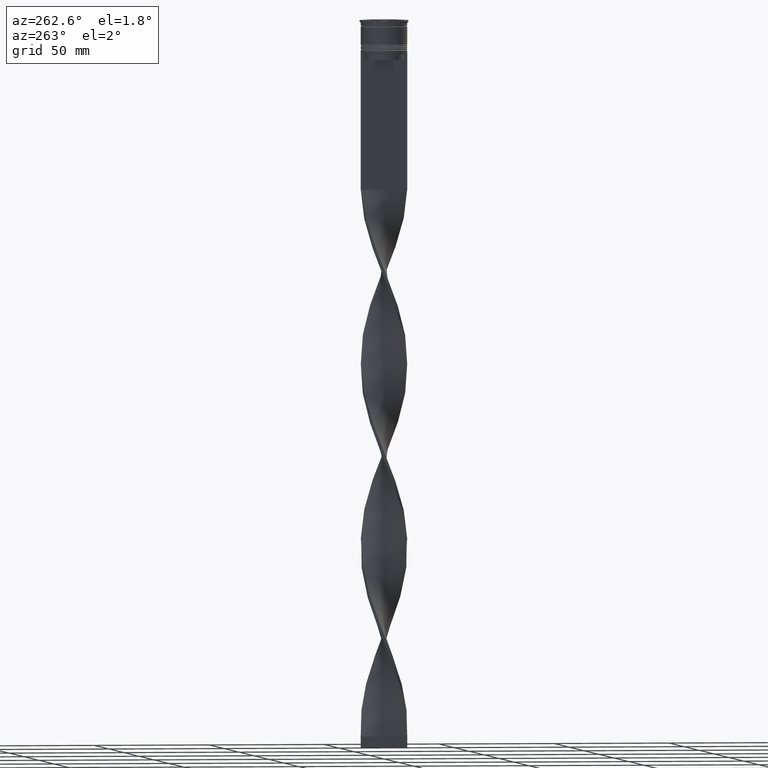
[diagram: clean part render]
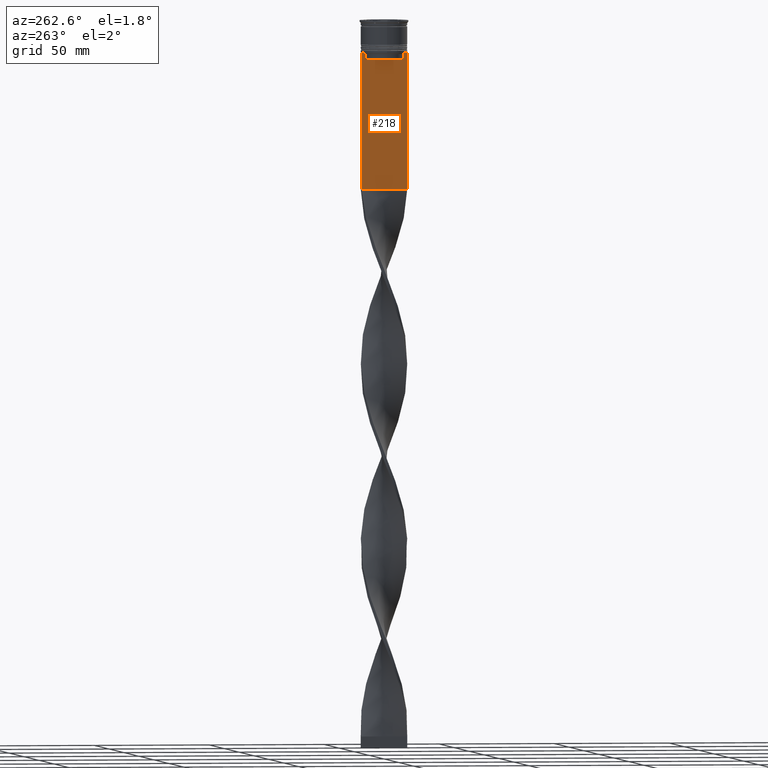
[diagram: same view with one face highlighted and labeled with its STEP entity id]
A machine part, auxiliary view. The second image highlights one B-rep face of the part: STEP entity #218.
In plain terms, the highlighted planar face has unit normal (-1, 0, 0).
Its self-contained STEP definition (entity closure, byte-faithful):
#84 = AXIS2_PLACEMENT_3D ( 'NONE', #3592, #623, #322 ) ;
#86 = VERTEX_POINT ( 'NONE', #1537 ) ;
#115 = LINE ( 'NONE', #1435, #3441 ) ;
#172 = CARTESIAN_POINT ( 'NONE',  ( -0.7499999999999997780, 9.999999999999998224, -73.00000000000001421 ) ) ;
#173 = LINE ( 'NONE', #1494, #1977 ) ;
#209 = B_SPLINE_CURVE_WITH_KNOTS ( 'NONE', 3,
 ( #2712, #3514, #1195, #1885 ),
 .UNSPECIFIED., .F., .F.,
 ( 4, 4 ),
 ( 0.03866293624047253963, 0.03937282246709321309 ),
 .UNSPECIFIED. ) ;
#217 = DIRECTION ( 'NONE',  ( -0.000000000000000000, -0.000000000000000000, 1.000000000000000000 ) ) ;
#218 = ADVANCED_FACE ( 'NONE', ( #4242 ), #1267, .T. ) ;
#223 = ORIENTED_EDGE ( 'NONE', *, *, #250, .F. ) ;
#237 = VERTEX_POINT ( 'NONE', #1644 ) ;
#250 = EDGE_CURVE ( 'NONE', #86, #2682, #1882, .T. ) ;
#288 = CARTESIAN_POINT ( 'NONE',  ( -0.7499999999999997780, 8.366450860430608927, -14.50000000000000000 ) ) ;
#322 = DIRECTION ( 'NONE',  ( 0.000000000000000000, 0.000000000000000000, 1.000000000000000000 ) ) ;
#349 = CARTESIAN_POINT ( 'NONE',  ( -0.7499999999999997780, 8.868342573446296839, -14.00000000000000178 ) ) ;
#398 = ORIENTED_EDGE ( 'NONE', *, *, #2171, .F. ) ;
#485 = CARTESIAN_POINT ( 'NONE',  ( -0.7499999999999997780, -8.366450860430608927, -17.00000000000000000 ) ) ;
#540 = VECTOR ( 'NONE', #1773, 1000.000000000000000 ) ;
#554 = ORIENTED_EDGE ( 'NONE', *, *, #1720, .F. ) ;
#604 = ORIENTED_EDGE ( 'NONE', *, *, #1078, .F. ) ;
#623 = DIRECTION ( 'NONE',  ( -1.000000000000000000, 0.000000000000000000, 0.000000000000000000 ) ) ;
#624 = VERTEX_POINT ( 'NONE', #3242 ) ;
#716 = CARTESIAN_POINT ( 'NONE',  ( -0.7499999999999997780, 8.366450860430608927, -17.00000000000000000 ) ) ;
#760 = EDGE_CURVE ( 'NONE', #4292, #3443, #1265, .T. ) ;
#773 = CARTESIAN_POINT ( 'NONE',  ( -0.7499999999999997780, -10.00000000000000533, -73.00000000000001421 ) ) ;
#851 = CARTESIAN_POINT ( 'NONE',  ( -0.7499999999999997780, 9.999999999999998224, 6.056171120131581098 ) ) ;
#854 = ORIENTED_EDGE ( 'NONE', *, *, #2478, .F. ) ;
#918 = DIRECTION ( 'NONE',  ( 0.000000000000000000, -1.000000000000000000, 0.000000000000000000 ) ) ;
#946 = VERTEX_POINT ( 'NONE', #1426 ) ;
#1078 = EDGE_CURVE ( 'NONE', #237, #86, #4069, .T. ) ;
#1131 = VERTEX_POINT ( 'NONE', #4114 ) ;
#1195 = CARTESIAN_POINT ( 'NONE',  ( -0.7499999999999997780, -8.701063080777123204, -14.16668447713511547 ) ) ;
#1265 = LINE ( 'NONE', #2583, #1518 ) ;
#1267 = PLANE ( 'NONE',  #84 ) ;
#1362 = VERTEX_POINT ( 'NONE', #172 ) ;
#1368 = VECTOR ( 'NONE', #3486, 1000.000000000000000 ) ;
#1426 = CARTESIAN_POINT ( 'NONE',  ( -0.7499999999999997780, -8.868342573446296839, -14.00000000000000178 ) ) ;
#1435 = CARTESIAN_POINT ( 'NONE',  ( -0.7499999999999997780, -10.00000000000000533, 6.056171120131581098 ) ) ;
#1494 = CARTESIAN_POINT ( 'NONE',  ( -0.7499999999999997780, -8.366450860430608927, 0.000000000000000000 ) ) ;
#1518 = VECTOR ( 'NONE', #4008, 1000.000000000000000 ) ;
#1537 = CARTESIAN_POINT ( 'NONE',  ( -0.7499999999999997780, 8.868342573446296839, -14.00000000000000178 ) ) ;
#1550 = CARTESIAN_POINT ( 'NONE',  ( -0.7499999999999997780, -8.366450860430608927, -14.50000000000000000 ) ) ;
#1623 = LINE ( 'NONE', #2690, #2135 ) ;
#1628 = LINE ( 'NONE', #3298, #3565 ) ;
#1644 = CARTESIAN_POINT ( 'NONE',  ( -0.7499999999999997780, 9.871550030263740894, -14.00000000000000178 ) ) ;
#1720 = EDGE_CURVE ( 'NONE', #3443, #3572, #173, .T. ) ;
#1763 = DIRECTION ( 'NONE',  ( 0.000000000000000000, 0.000000000000000000, -1.000000000000000000 ) ) ;
#1773 = DIRECTION ( 'NONE',  ( 0.000000000000000000, 1.000000000000000000, 0.000000000000000000 ) ) ;
#1780 = ORIENTED_EDGE ( 'NONE', *, *, #3329, .F. ) ;
#1861 = CARTESIAN_POINT ( 'NONE',  ( -0.7499999999999997780, -10.00000000000000533, -14.00000000000000178 ) ) ;
#1878 = LINE ( 'NONE', #1861, #2460 ) ;
#1882 = B_SPLINE_CURVE_WITH_KNOTS ( 'NONE', 3,
 ( #349, #2938, #3612, #3635 ),
 .UNSPECIFIED., .F., .F.,
 ( 4, 4 ),
 ( 0.01512225952876174867, 0.01583070519299695222 ),
 .UNSPECIFIED. ) ;
#1885 = CARTESIAN_POINT ( 'NONE',  ( -0.7499999999999997780, -8.868342573446296839, -14.00000000000000178 ) ) ;
#1925 = ORIENTED_EDGE ( 'NONE', *, *, #2257, .F. ) ;
#1977 = VECTOR ( 'NONE', #217, 1000.000000000000000 ) ;
#2135 = VECTOR ( 'NONE', #3322, 1000.000000000000000 ) ;
#2171 = EDGE_CURVE ( 'NONE', #946, #4006, #1878, .T. ) ;
#2196 = ORIENTED_EDGE ( 'NONE', *, *, #3007, .F. ) ;
#2216 = ORIENTED_EDGE ( 'NONE', *, *, #760, .F. ) ;
#2257 = EDGE_CURVE ( 'NONE', #3431, #237, #1628, .T. ) ;
#2346 = EDGE_CURVE ( 'NONE', #624, #1131, #115, .T. ) ;
#2455 = LINE ( 'NONE', #773, #540 ) ;
#2460 = VECTOR ( 'NONE', #918, 1000.000000000000000 ) ;
#2478 = EDGE_CURVE ( 'NONE', #1131, #1362, #2455, .T. ) ;
#2508 = LINE ( 'NONE', #851, #3030 ) ;
#2583 = CARTESIAN_POINT ( 'NONE',  ( -0.7499999999999997780, 8.400000000000003908, -17.00000000000000000 ) ) ;
#2614 = CARTESIAN_POINT ( 'NONE',  ( -0.7499999999999997780, -9.871550030263740894, -14.00000000000000178 ) ) ;
#2682 = VERTEX_POINT ( 'NONE', #288 ) ;
#2690 = CARTESIAN_POINT ( 'NONE',  ( -0.7499999999999997780, 8.366450860430608927, 0.000000000000000000 ) ) ;
#2712 = CARTESIAN_POINT ( 'NONE',  ( -0.7499999999999997780, -8.366450860430608927, -14.50000000000000000 ) ) ;
#2729 = DIRECTION ( 'NONE',  ( 0.000000000000000000, -1.000000000000000000, 0.000000000000000000 ) ) ;
#2772 = LINE ( 'NONE', #3100, #1368 ) ;
#2938 = CARTESIAN_POINT ( 'NONE',  ( -0.7499999999999997780, 8.701063075415252257, -14.16668448247791723 ) ) ;
#3007 = EDGE_CURVE ( 'NONE', #2682, #4292, #1623, .T. ) ;
#3030 = VECTOR ( 'NONE', #3797, 1000.000000000000000 ) ;
#3100 = CARTESIAN_POINT ( 'NONE',  ( -0.7499999999999997780, -10.00000000000000533, -14.00000000000000178 ) ) ;
#3131 = CARTESIAN_POINT ( 'NONE',  ( -0.7499999999999997780, -10.00000000000000533, -14.00000000000000178 ) ) ;
#3189 = ORIENTED_EDGE ( 'NONE', *, *, #2346, .F. ) ;
#3242 = CARTESIAN_POINT ( 'NONE',  ( -0.7499999999999997780, -10.00000000000000533, -14.00000000000000178 ) ) ;
#3298 = CARTESIAN_POINT ( 'NONE',  ( -0.7499999999999997780, -10.00000000000000533, -14.00000000000000178 ) ) ;
#3316 = ORIENTED_EDGE ( 'NONE', *, *, #3731, .F. ) ;
#3322 = DIRECTION ( 'NONE',  ( 0.000000000000000000, 0.000000000000000000, -1.000000000000000000 ) ) ;
#3329 = EDGE_CURVE ( 'NONE', #4006, #624, #2772, .T. ) ;
#3405 = ORIENTED_EDGE ( 'NONE', *, *, #3780, .T. ) ;
#3431 = VERTEX_POINT ( 'NONE', #4101 ) ;
#3433 = EDGE_LOOP ( 'NONE', ( #223, #604, #1925, #3405, #854, #3189, #1780, #398, #3316, #554, #2216, #2196 ) ) ;
#3441 = VECTOR ( 'NONE', #1763, 1000.000000000000000 ) ;
#3443 = VERTEX_POINT ( 'NONE', #485 ) ;
#3486 = DIRECTION ( 'NONE',  ( 0.000000000000000000, -1.000000000000000000, 0.000000000000000000 ) ) ;
#3514 = CARTESIAN_POINT ( 'NONE',  ( -0.7499999999999997780, -8.533766903463440912, -14.33335220807192201 ) ) ;
#3565 = VECTOR ( 'NONE', #2729, 1000.000000000000000 ) ;
#3572 = VERTEX_POINT ( 'NONE', #1550 ) ;
#3592 = CARTESIAN_POINT ( 'NONE',  ( -0.7499999999999997780, -10.00000000000000533, 6.056171120131581098 ) ) ;
#3612 = CARTESIAN_POINT ( 'NONE',  ( -0.7499999999999997780, 8.533766897779926808, -14.33335221373273782 ) ) ;
#3635 = CARTESIAN_POINT ( 'NONE',  ( -0.7499999999999997780, 8.366450860430608927, -14.50000000000000000 ) ) ;
#3731 = EDGE_CURVE ( 'NONE', #3572, #946, #209, .T. ) ;
#3741 = DIRECTION ( 'NONE',  ( 0.000000000000000000, -1.000000000000000000, 0.000000000000000000 ) ) ;
#3780 = EDGE_CURVE ( 'NONE', #3431, #1362, #2508, .T. ) ;
#3797 = DIRECTION ( 'NONE',  ( 0.000000000000000000, 0.000000000000000000, -1.000000000000000000 ) ) ;
#4006 = VERTEX_POINT ( 'NONE', #2614 ) ;
#4008 = DIRECTION ( 'NONE',  ( 0.000000000000000000, -1.000000000000000000, 0.000000000000000000 ) ) ;
#4021 = VECTOR ( 'NONE', #3741, 1000.000000000000000 ) ;
#4069 = LINE ( 'NONE', #3131, #4021 ) ;
#4101 = CARTESIAN_POINT ( 'NONE',  ( -0.7499999999999997780, 9.999999999999998224, -14.00000000000000178 ) ) ;
#4114 = CARTESIAN_POINT ( 'NONE',  ( -0.7499999999999998890, -10.00000000000000533, -73.00000000000001421 ) ) ;
#4242 = FACE_OUTER_BOUND ( 'NONE', #3433, .T. ) ;
#4292 = VERTEX_POINT ( 'NONE', #716 ) ;